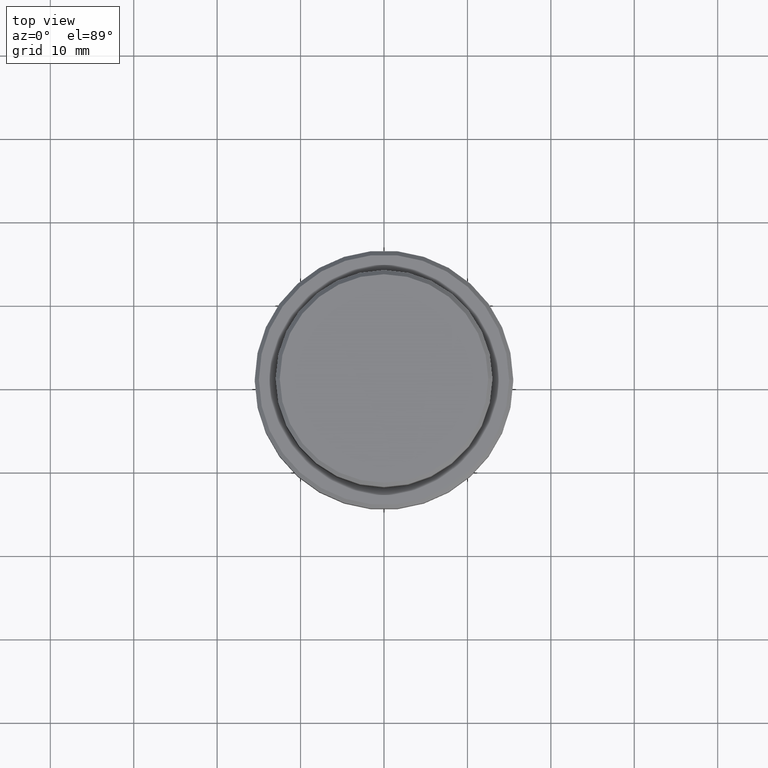
[diagram: clean part render]
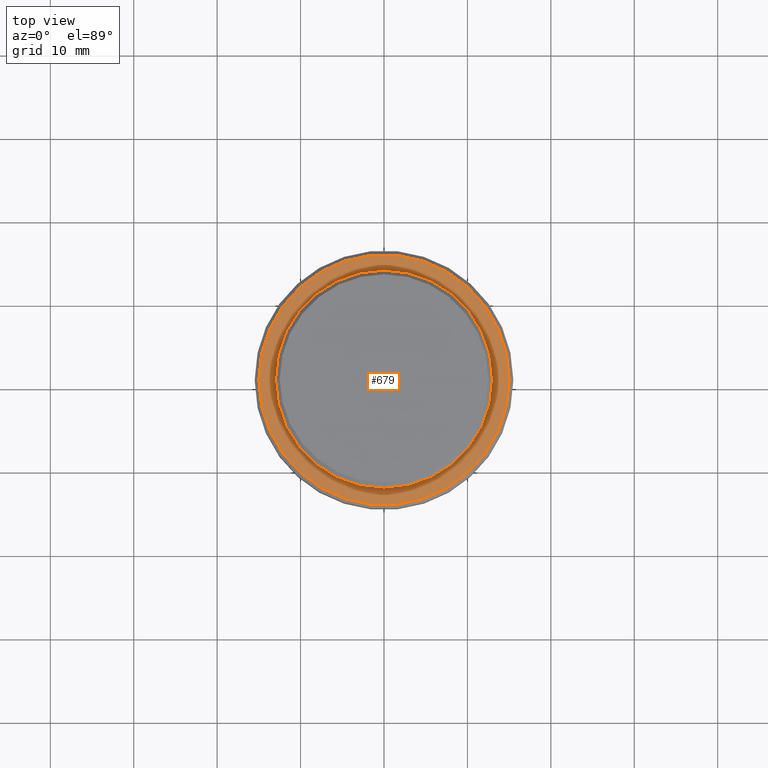
[diagram: same view with one face highlighted and labeled with its STEP entity id]
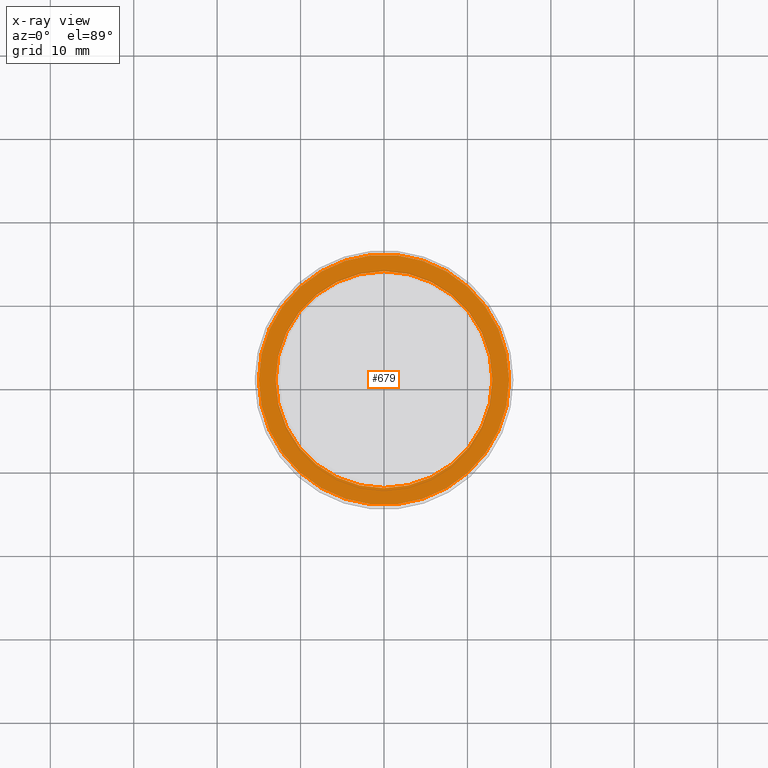
[diagram: x-ray of the same camera — body ghosted, the highlighted face saturated]
A machine part, top view. The second image highlights one B-rep face of the part: STEP entity #679.
The next image is the same camera in x-ray: the body ghosted, the highlighted face saturated — about 0% of this face is hidden behind the body in this view.
In plain terms, the highlighted planar face has unit normal (0, -0, 1).
Its self-contained STEP definition (entity closure, byte-faithful):
#5 = DIRECTION ( 'NONE',  ( 1.000000000000000000, 0.000000000000000000, 0.000000000000000000 ) ) ;
#8 = VERTEX_POINT ( 'NONE', #1328 ) ;
#79 = AXIS2_PLACEMENT_3D ( 'NONE', #1108, #978, #5 ) ;
#96 = AXIS2_PLACEMENT_3D ( 'NONE', #998, #349, #786 ) ;
#199 = DIRECTION ( 'NONE',  ( 1.000000000000000000, 0.000000000000000000, 0.000000000000000000 ) ) ;
#226 = VERTEX_POINT ( 'NONE', #614 ) ;
#282 = AXIS2_PLACEMENT_3D ( 'NONE', #1094, #656, #793 ) ;
#311 = FACE_OUTER_BOUND ( 'NONE', #415, .T. ) ;
#327 = AXIS2_PLACEMENT_3D ( 'NONE', #812, #1150, #1357 ) ;
#349 = DIRECTION ( 'NONE',  ( 0.000000000000000000, 0.000000000000000000, -1.000000000000000000 ) ) ;
#368 = VERTEX_POINT ( 'NONE', #1201 ) ;
#415 = EDGE_LOOP ( 'NONE', ( #776, #1067 ) ) ;
#489 = CIRCLE ( 'NONE', #79, 12.99999999999999467 ) ;
#509 = EDGE_CURVE ( 'NONE', #949, #368, #664, .T. ) ;
#514 = PLANE ( 'NONE',  #1107 ) ;
#532 = EDGE_LOOP ( 'NONE', ( #994, #638 ) ) ;
#614 = CARTESIAN_POINT ( 'NONE',  ( 12.99999999999999467, 0.000000000000000000, -9.000000000000000000 ) ) ;
#626 = FACE_BOUND ( 'NONE', #532, .T. ) ;
#638 = ORIENTED_EDGE ( 'NONE', *, *, #1329, .T. ) ;
#656 = DIRECTION ( 'NONE',  ( -0.000000000000000000, -0.000000000000000000, 1.000000000000000000 ) ) ;
#664 = CIRCLE ( 'NONE', #327, 14.99999999999998579 ) ;
#679 = ADVANCED_FACE ( 'NONE', ( #311, #626 ), #514, .T. ) ;
#710 = CARTESIAN_POINT ( 'NONE',  ( -14.99999999999998579, 0.000000000000000000, -9.000000000000000000 ) ) ;
#752 = EDGE_CURVE ( 'NONE', #226, #8, #1339, .T. ) ;
#754 = EDGE_CURVE ( 'NONE', #368, #949, #897, .T. ) ;
#776 = ORIENTED_EDGE ( 'NONE', *, *, #509, .T. ) ;
#786 = DIRECTION ( 'NONE',  ( 1.000000000000000000, 0.000000000000000000, 0.000000000000000000 ) ) ;
#793 = DIRECTION ( 'NONE',  ( 1.000000000000000000, 0.000000000000000000, 0.000000000000000000 ) ) ;
#812 = CARTESIAN_POINT ( 'NONE',  ( 0.000000000000000000, 0.000000000000000000, -9.000000000000000000 ) ) ;
#839 = DIRECTION ( 'NONE',  ( 0.000000000000000000, -0.000000000000000000, 1.000000000000000000 ) ) ;
#897 = CIRCLE ( 'NONE', #282, 14.99999999999998579 ) ;
#949 = VERTEX_POINT ( 'NONE', #710 ) ;
#978 = DIRECTION ( 'NONE',  ( 0.000000000000000000, 0.000000000000000000, -1.000000000000000000 ) ) ;
#994 = ORIENTED_EDGE ( 'NONE', *, *, #752, .T. ) ;
#998 = CARTESIAN_POINT ( 'NONE',  ( 0.000000000000000000, 0.000000000000000000, -9.000000000000000000 ) ) ;
#1067 = ORIENTED_EDGE ( 'NONE', *, *, #754, .T. ) ;
#1094 = CARTESIAN_POINT ( 'NONE',  ( 0.000000000000000000, 0.000000000000000000, -9.000000000000000000 ) ) ;
#1107 = AXIS2_PLACEMENT_3D ( 'NONE', #1181, #839, #199 ) ;
#1108 = CARTESIAN_POINT ( 'NONE',  ( 0.000000000000000000, 0.000000000000000000, -9.000000000000000000 ) ) ;
#1150 = DIRECTION ( 'NONE',  ( -0.000000000000000000, -0.000000000000000000, 1.000000000000000000 ) ) ;
#1181 = CARTESIAN_POINT ( 'NONE',  ( 0.000000000000000000, 12.49999999999999289, -9.000000000000000000 ) ) ;
#1201 = CARTESIAN_POINT ( 'NONE',  ( 14.99999999999998579, 1.867586368699712587E-15, -9.000000000000000000 ) ) ;
#1328 = CARTESIAN_POINT ( 'NONE',  ( -12.99999999999999467, 1.592040838891558504E-15, -9.000000000000000000 ) ) ;
#1329 = EDGE_CURVE ( 'NONE', #8, #226, #489, .T. ) ;
#1339 = CIRCLE ( 'NONE', #96, 12.99999999999999467 ) ;
#1357 = DIRECTION ( 'NONE',  ( 1.000000000000000000, 0.000000000000000000, 0.000000000000000000 ) ) ;